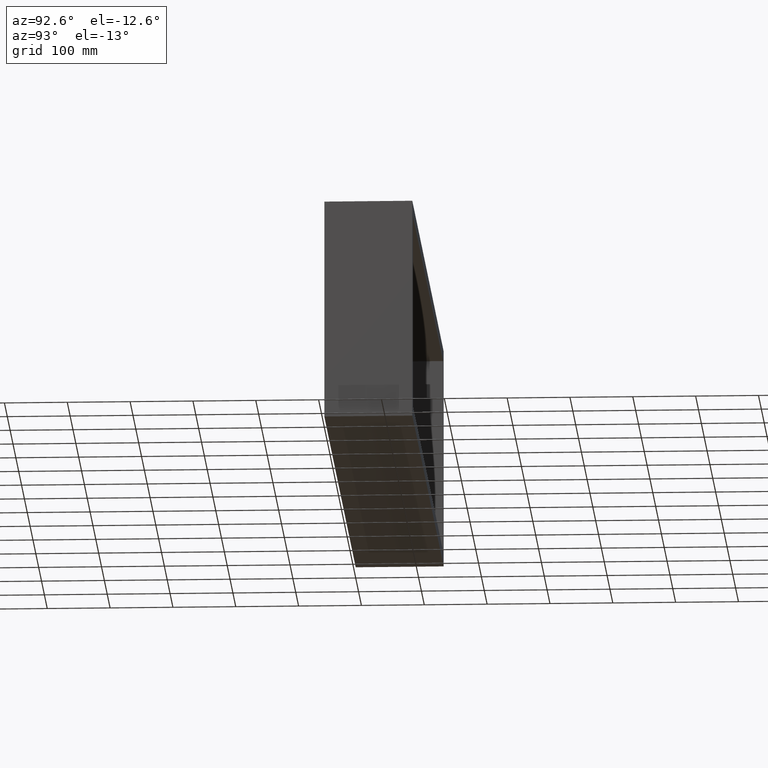
[diagram: clean part render]
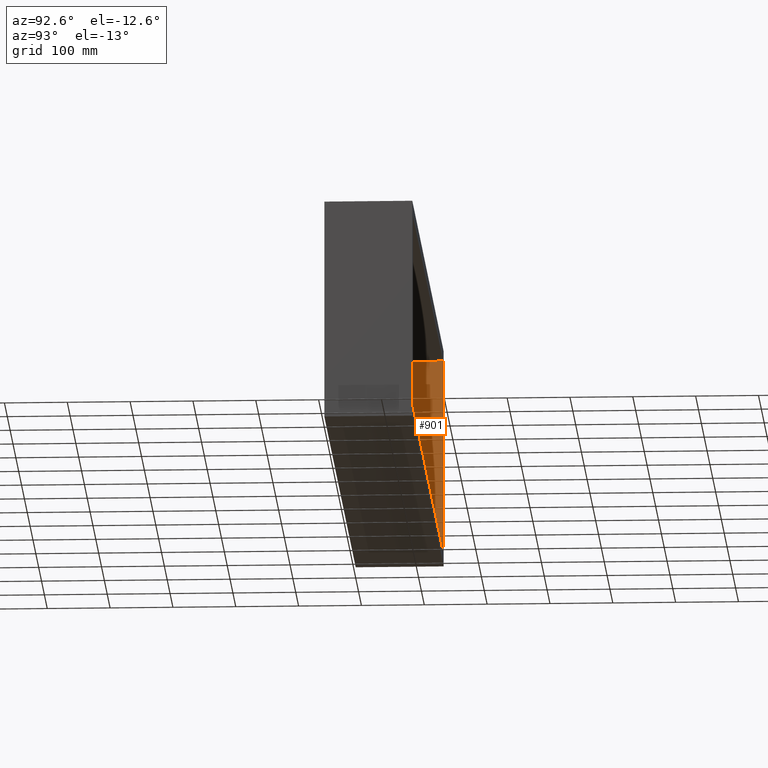
[diagram: same view with one face highlighted and labeled with its STEP entity id]
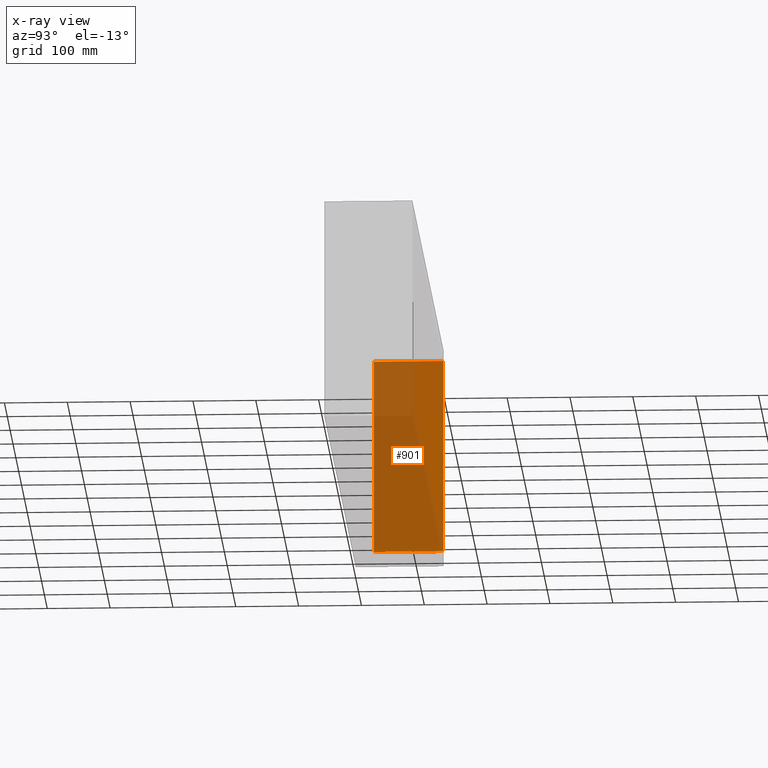
[diagram: x-ray of the same camera — body ghosted, the highlighted face saturated]
A machine part, auxiliary view. The second image highlights one B-rep face of the part: STEP entity #901.
The next image is the same camera in x-ray: the body ghosted, the highlighted face saturated — about 72% of this face is hidden behind the body in this view.
In plain terms, the highlighted planar face has unit normal (-1, 0, 0).
Its self-contained STEP definition (entity closure, byte-faithful):
#1 = ORIENTED_EDGE ( 'NONE', *, *, #787, .T. ) ;
#3 = ORIENTED_EDGE ( 'NONE', *, *, #463, .T. ) ;
#9 = EDGE_CURVE ( 'NONE', #532, #11, #58, .T. ) ;
#11 = VERTEX_POINT ( 'NONE', #1118 ) ;
#58 = LINE ( 'NONE', #881, #526 ) ;
#63 = AXIS2_PLACEMENT_3D ( 'NONE', #246, #180, #538 ) ;
#138 = LINE ( 'NONE', #236, #1065 ) ;
#157 = PLANE ( 'NONE',  #63 ) ;
#170 = ORIENTED_EDGE ( 'NONE', *, *, #9, .F. ) ;
#180 = DIRECTION ( 'NONE',  ( -1.000000000000000000, 0.0000000000000000000, 0.0000000000000000000 ) ) ;
#236 = CARTESIAN_POINT ( 'NONE',  ( 20.00000000000000000, -1104.400289750052500, -329.9999999999999400 ) ) ;
#246 = CARTESIAN_POINT ( 'NONE',  ( 20.00000000000000000, -1104.400289750052500, -329.9999999999999400 ) ) ;
#463 = EDGE_CURVE ( 'NONE', #1030, #11, #553, .T. ) ;
#479 = VECTOR ( 'NONE', #795, 1000.000000000000000 ) ;
#523 = EDGE_CURVE ( 'NONE', #529, #1030, #138, .T. ) ;
#526 = VECTOR ( 'NONE', #768, 1000.000000000000000 ) ;
#529 = VERTEX_POINT ( 'NONE', #659 ) ;
#532 = VERTEX_POINT ( 'NONE', #657 ) ;
#538 = DIRECTION ( 'NONE',  ( 0.0000000000000000000, 0.0000000000000000000, 1.000000000000000000 ) ) ;
#553 = LINE ( 'NONE', #898, #685 ) ;
#601 = DIRECTION ( 'NONE',  ( 0.0000000000000000000, 0.0000000000000000000, 1.000000000000000000 ) ) ;
#657 = CARTESIAN_POINT ( 'NONE',  ( 20.00000000000000000, 30.00000000000002800, -20.00000000000000000 ) ) ;
#659 = CARTESIAN_POINT ( 'NONE',  ( 20.00000000000001800, 30.00000000000002800, -329.9999999999999400 ) ) ;
#685 = VECTOR ( 'NONE', #601, 1000.000000000000000 ) ;
#687 = LINE ( 'NONE', #960, #479 ) ;
#768 = DIRECTION ( 'NONE',  ( -0.0000000000000000000, 1.000000000000000000, -0.0000000000000000000 ) ) ;
#787 = EDGE_CURVE ( 'NONE', #532, #529, #687, .T. ) ;
#795 = DIRECTION ( 'NONE',  ( 1.343011723336875100E-016, 1.343011723336875100E-016, -1.000000000000000000 ) ) ;
#811 = EDGE_LOOP ( 'NONE', ( #1, #1035, #3, #170 ) ) ;
#828 = DIRECTION ( 'NONE',  ( -0.0000000000000000000, 1.000000000000000000, -0.0000000000000000000 ) ) ;
#881 = CARTESIAN_POINT ( 'NONE',  ( 20.00000000000000000, -1104.400289750052500, -20.00000000000000000 ) ) ;
#892 = CARTESIAN_POINT ( 'NONE',  ( 20.00000000000000000, 140.0000000000000000, -329.9999999999999400 ) ) ;
#898 = CARTESIAN_POINT ( 'NONE',  ( 20.00000000000000000, 140.0000000000000000, -329.9999999999999400 ) ) ;
#901 = ADVANCED_FACE ( 'NONE', ( #1110 ), #157, .F. ) ;
#960 = CARTESIAN_POINT ( 'NONE',  ( 19.99999999999999600, 30.00000000000000000, -174.9999999999996300 ) ) ;
#1030 = VERTEX_POINT ( 'NONE', #892 ) ;
#1035 = ORIENTED_EDGE ( 'NONE', *, *, #523, .T. ) ;
#1065 = VECTOR ( 'NONE', #828, 1000.000000000000000 ) ;
#1110 = FACE_OUTER_BOUND ( 'NONE', #811, .T. ) ;
#1118 = CARTESIAN_POINT ( 'NONE',  ( 20.00000000000000000, 140.0000000000000000, -20.00000000000000000 ) ) ;